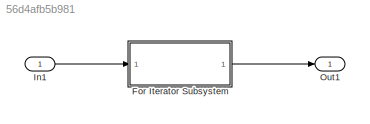
MODEL slx_56d4afb5b981
KIND model
CONFIG AbsTol = auto
CONFIG FixedStep = auto
CONFIG MaxStep = auto
CONFIG MinStep = auto
CONFIG RelTol = 1e-3
CONFIG SampleTimeConstraint = Unconstrained
CONFIG Solver = VariableStepAuto
CONFIG SolverMode = Auto
CONFIG SolverName = VariableStepAuto
CONFIG StartTime = 0.0
CONFIG StopTime = 10.0
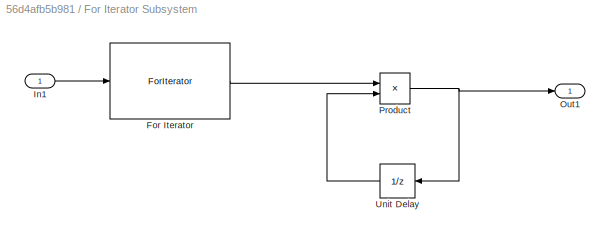
BLOCK [SubSystem] For Iterator Subsystem
  Ports = [1, 1]
  RequestExecContextInheritance = off
  TreatAsAtomicUnit = on
  Variant = off
BLOCK [ForIterator] For Iterator Subsystem/For Iterator
  IterationSource = external
  Ports = [1, 1]
  ResetStates = reset
BLOCK [Inport] For Iterator Subsystem/In1
  IconDisplay = Port number
BLOCK [Outport] For Iterator Subsystem/Out1
  IconDisplay = Port number
BLOCK [Product] For Iterator Subsystem/Product
  InputSameDT = off
  Ports = [2, 1]
  RndMeth = Floor
  SaturateOnIntegerOverflow = off
BLOCK [UnitDelay] For Iterator Subsystem/Unit Delay
  InitialCondition = 1
  InputProcessing = Elements as channels (sample based)
  SampleTime = -1
BLOCK [Inport] In1
  IconDisplay = Port number
BLOCK [Outport] Out1
  IconDisplay = Port number
LINE For Iterator Subsystem/For Iterator:1 -> For Iterator Subsystem/Product:1
LINE For Iterator Subsystem/In1:1 -> For Iterator Subsystem/For Iterator:1
NET For Iterator Subsystem/Product:1 -> For Iterator Subsystem/Out1:1, For Iterator Subsystem/Unit Delay:1
LINE For Iterator Subsystem/Unit Delay:1 -> For Iterator Subsystem/Product:2
LINE For Iterator Subsystem:1 -> Out1:1
LINE In1:1 -> For Iterator Subsystem:1
note: NET lines group one-source signal fan-out (src -> all destinations, sorted); 1:1 wires keep LINE
